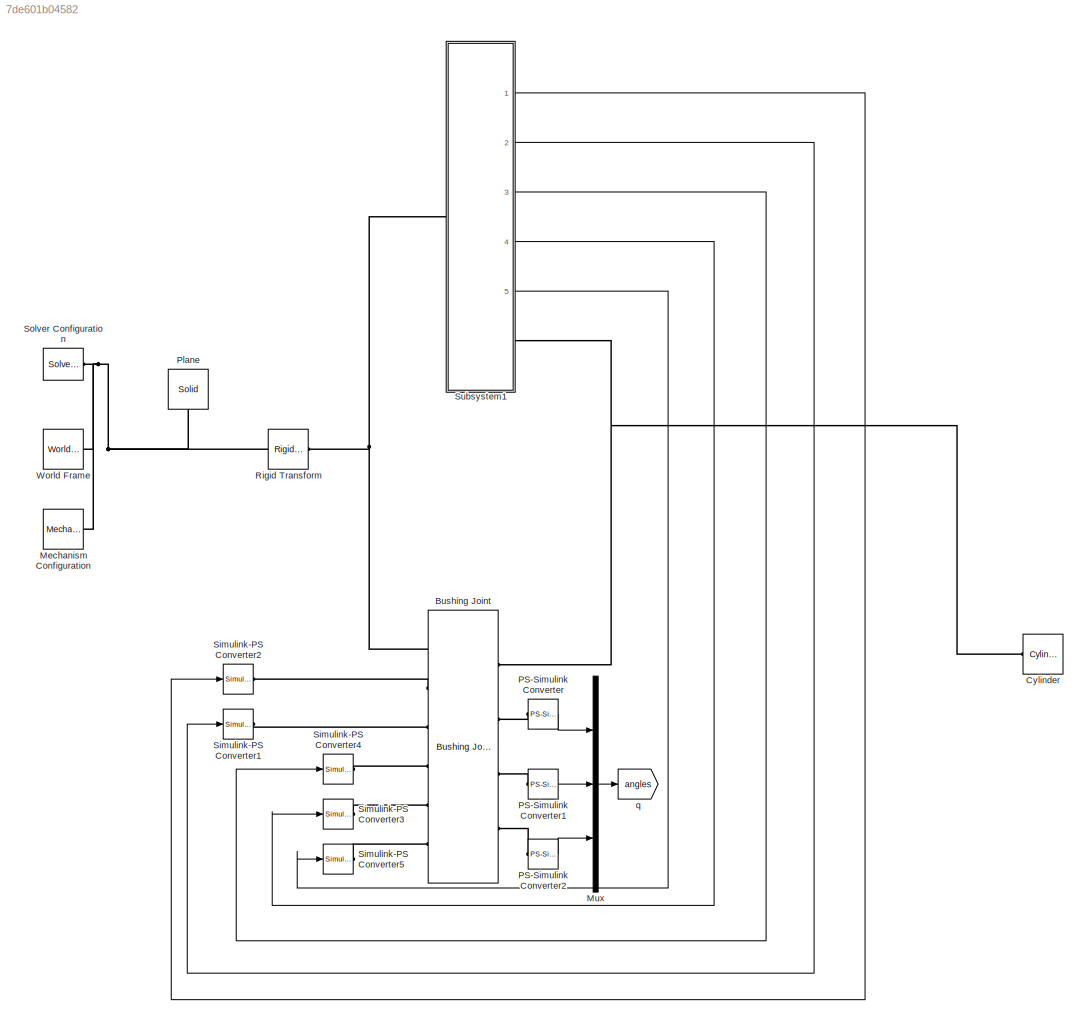
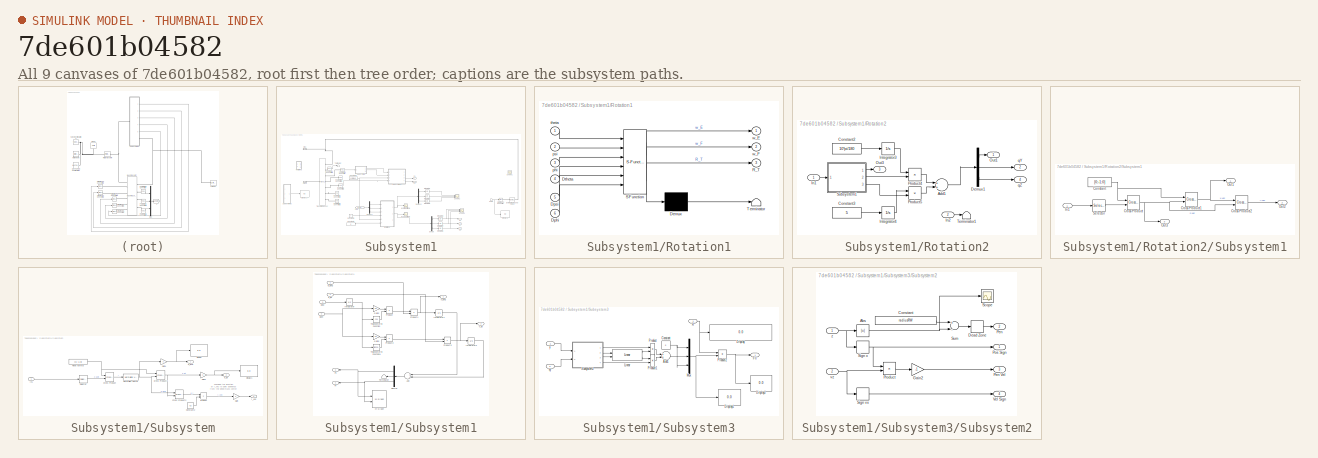
[diagram: thumbnail index - all 9 canvases of the model, root first then tree order]
MODEL slx_7de601b04582
KIND model
CONFIG AbsTol = auto
CONFIG EnableMultiTasking = on
CONFIG FixedStep = auto
CONFIG MaxStep = auto
CONFIG MinStep = auto
CONFIG RelTol = 1e-3
CONFIG SampleTimeConstraint = Unconstrained
CONFIG Solver = VariableStepAuto
CONFIG SolverName = VariableStepAuto
CONFIG StartTime = 0.0
CONFIG StopTime = 5
BLOCK [Reference] Bushing Joint  REF=sm_lib/Joints/Bushing Joint
  Ports = [0, 0, 0, 0, 0, 6, 4]
  SourceBlock = sm_lib/Joints/Bushing Joint
  SourceProductBaseCode = MS
  SourceProductName = Simscape Multibody
  SourceType = Bushing Joint
BLOCK [Reference] Cylinder  REF=Parts_Lib/Cylinder
  Ports = [0, 0, 0, 0, 0, 1]
  SourceBlock = Parts_Lib/Cylinder
  SourceType = Solid Cylinder with Markings
  Tag = CustomStyle
BLOCK [Reference] Mechanism Configuration  REF=sm_lib/Utilities/Mechanism
Configuration
  Ports = [0, 0, 0, 0, 0, 0, 1]
  SourceBlock = sm_lib/Utilities/Mechanism\nConfiguration
  SourceProductBaseCode = MS
  SourceProductName = Simscape Multibody
  SourceType = Mechanism\nConfiguration
BLOCK [Mux] Mux
  DisplayOption = bar
  Inputs = 3
  Ports = [3, 1]
BLOCK [Reference] PS-Simulink Converter  REF=nesl_utility/PS-Simulink
Converter
  Ports = [0, 1, 0, 0, 0, 1]
  SourceBlock = nesl_utility/PS-Simulink\nConverter
  SourceProductBaseCode = SS
  SourceProductName = Simscape
  SourceType = PS-Simulink\nConverter
BLOCK [Reference] PS-Simulink Converter1  REF=nesl_utility/PS-Simulink
Converter
  Ports = [0, 1, 0, 0, 0, 1]
  SourceBlock = nesl_utility/PS-Simulink\nConverter
  SourceProductBaseCode = SS
  SourceProductName = Simscape
  SourceType = PS-Simulink\nConverter
BLOCK [Reference] PS-Simulink Converter2  REF=nesl_utility/PS-Simulink
Converter
  Ports = [0, 1, 0, 0, 0, 1]
  SourceBlock = nesl_utility/PS-Simulink\nConverter
  SourceProductBaseCode = SS
  SourceProductName = Simscape
  SourceType = PS-Simulink\nConverter
BLOCK [Reference] Plane  REF=sm_lib/Body Elements/Solid
  Ports = [0, 0, 0, 0, 0, 0, 1]
  SourceBlock = sm_lib/Body Elements/Solid
  SourceProductBaseCode = MS
  SourceProductName = Simscape Multibody
  SourceType = Solid
BLOCK [Reference] Rigid Transform  REF=sm_lib/Frames and
Transforms/Rigid
Transform
  Ports = [0, 0, 0, 0, 0, 1, 1]
  SourceBlock = sm_lib/Frames and\nTransforms/Rigid\nTransform
  SourceProductBaseCode = MS
  SourceProductName = Simscape Multibody
  SourceType = Rigid\nTransform
BLOCK [Reference] Simulink-PS Converter1  REF=nesl_utility/Simulink-PS
Converter
  Ports = [1, 0, 0, 0, 0, 0, 1]
  SourceBlock = nesl_utility/Simulink-PS\nConverter
  SourceProductBaseCode = SS
  SourceProductName = Simscape
  SourceType = Simulink-PS\nConverter
BLOCK [Reference] Simulink-PS Converter2  REF=nesl_utility/Simulink-PS
Converter
  Ports = [1, 0, 0, 0, 0, 0, 1]
  SourceBlock = nesl_utility/Simulink-PS\nConverter
  SourceProductBaseCode = SS
  SourceProductName = Simscape
  SourceType = Simulink-PS\nConverter
BLOCK [Reference] Simulink-PS Converter3  REF=nesl_utility/Simulink-PS
Converter
  Ports = [1, 0, 0, 0, 0, 0, 1]
  SourceBlock = nesl_utility/Simulink-PS\nConverter
  SourceProductBaseCode = SS
  SourceProductName = Simscape
  SourceType = Simulink-PS\nConverter
BLOCK [Reference] Simulink-PS Converter4  REF=nesl_utility/Simulink-PS
Converter
  Ports = [1, 0, 0, 0, 0, 0, 1]
  SourceBlock = nesl_utility/Simulink-PS\nConverter
  SourceProductBaseCode = SS
  SourceProductName = Simscape
  SourceType = Simulink-PS\nConverter
BLOCK [Reference] Simulink-PS Converter5  REF=nesl_utility/Simulink-PS
Converter
  Ports = [1, 0, 0, 0, 0, 0, 1]
  SourceBlock = nesl_utility/Simulink-PS\nConverter
  SourceProductBaseCode = SS
  SourceProductName = Simscape
  SourceType = Simulink-PS\nConverter
BLOCK [Reference] Solver Configuration  REF=nesl_utility/Solver
Configuration
  Ports = [0, 0, 0, 0, 0, 0, 1]
  SourceBlock = nesl_utility/Solver\nConfiguration
  SourceProductBaseCode = SS
  SourceProductName = Simscape
  SourceType = Solver\nConfiguration
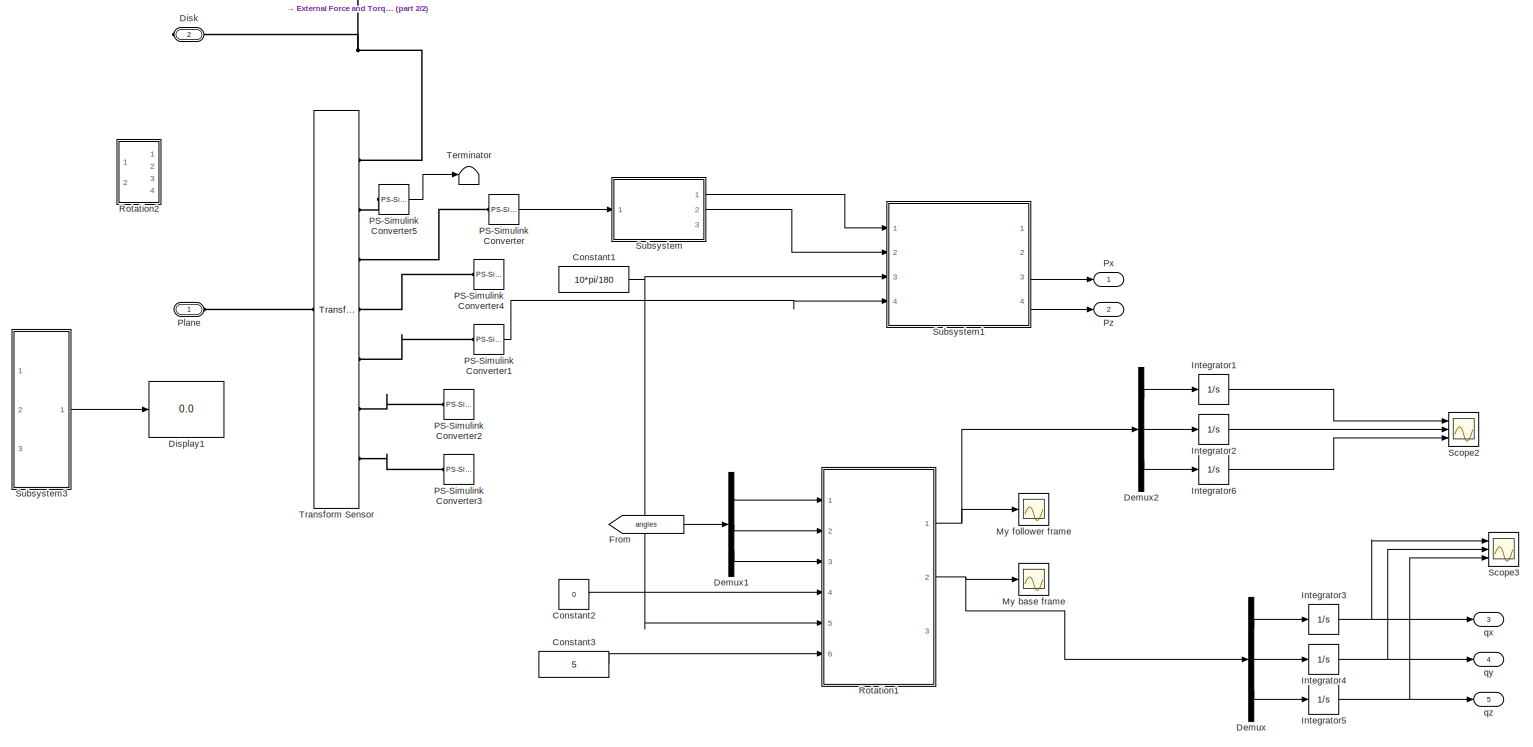
[diagram: Subsystem1 - part 1/2, most of the canvas]
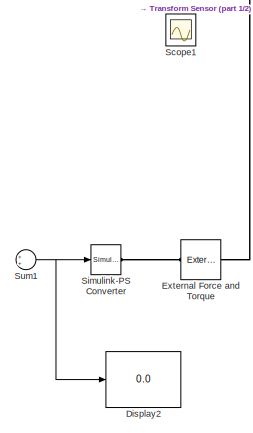
[diagram: Subsystem1 - part 2/2, middle right region]
BLOCK [SubSystem] Subsystem1
  Ports = [0, 5, 0, 0, 0, 1, 1]
  RequestExecContextInheritance = off
  Variant = off
BLOCK [Constant] Subsystem1/Constant1
  Value = 10*pi/180
BLOCK [Constant] Subsystem1/Constant2
  Value = 0
BLOCK [Constant] Subsystem1/Constant3
  Value = 5
BLOCK [Demux] Subsystem1/Demux
  DisplayOption = bar
  Outputs = 3
  Ports = [1, 3]
BLOCK [Demux] Subsystem1/Demux1
  DisplayOption = bar
  Outputs = 3
  Ports = [1, 3]
BLOCK [Demux] Subsystem1/Demux2
  DisplayOption = bar
  Outputs = 3
  Ports = [1, 3]
BLOCK [PMIOPort] Subsystem1/Disk
  Port = 2
  Side = Right
BLOCK [Display] Subsystem1/Display1
  Commented = on
  Decimation = 1
  Ports = [1]
BLOCK [Display] Subsystem1/Display2
  Decimation = 1
  Ports = [1]
BLOCK [Reference] Subsystem1/External Force and Torque  REF=sm_lib/Forces and
Torques/External Force
and Torque
  Commented = on
  Ports = [0, 0, 0, 0, 0, 1, 1]
  SourceBlock = sm_lib/Forces and\nTorques/External Force\nand Torque
  SourceProductBaseCode = MS
  SourceProductName = Simscape Multibody
  SourceType = External Force\nand Torque
BLOCK [From] Subsystem1/From
  GotoTag = angles
  TagVisibility = global
BLOCK [Integrator] Subsystem1/Integrator1
  Ports = [1, 1]
BLOCK [Integrator] Subsystem1/Integrator2
  Ports = [1, 1]
BLOCK [Integrator] Subsystem1/Integrator3
  Ports = [1, 1]
BLOCK [Integrator] Subsystem1/Integrator4
  Ports = [1, 1]
BLOCK [Integrator] Subsystem1/Integrator5
  Ports = [1, 1]
BLOCK [Integrator] Subsystem1/Integrator6
  Ports = [1, 1]
BLOCK [Scope] Subsystem1/My base frame
  NumInputPorts = 1
  Ports = [1]
  ScopeSpecificationString = Simulink.scopes.TimeScopeBlockCfg('CurrentConfiguration', extmgr.ConfigurationSet(extmgr.Configuration('Core','General UI',true),extmgr.Configuration('Core','Source UI',true),extmgr.Configuration('Sources','WiredSimulink',true,'DataLoggingVariableName','ScopeData1'),extmgr.Configuration('Visuals','Time Domain',true,'SerializedDisplays',{struct('MinYLimReal','-0.87343','MaxYLimReal','5.6526','YLabe...<+1436ch>
BLOCK [Scope] Subsystem1/My follower frame
  NumInputPorts = 1
  Ports = [1]
  ScopeSpecificationString = Simulink.scopes.TimeScopeBlockCfg('CurrentConfiguration', extmgr.ConfigurationSet(extmgr.Configuration('Core','General UI',true),extmgr.Configuration('Core','Source UI',true),extmgr.Configuration('Sources','WiredSimulink',true),extmgr.Configuration('Visuals','Time Domain',true,'SerializedDisplays',{struct('MinYLimReal','-0.82135','MaxYLimReal','5.64682','YLabelReal','','MinYLimMag','0.00000','MaxY...<+1400ch>
BLOCK [Reference] Subsystem1/PS-Simulink Converter  REF=nesl_utility/PS-Simulink
Converter
  Ports = [0, 1, 0, 0, 0, 1]
  SourceBlock = nesl_utility/PS-Simulink\nConverter
  SourceProductBaseCode = SS
  SourceProductName = Simscape
  SourceType = PS-Simulink\nConverter
BLOCK [Reference] Subsystem1/PS-Simulink Converter1  REF=nesl_utility/PS-Simulink
Converter
  Ports = [0, 1, 0, 0, 0, 1]
  SourceBlock = nesl_utility/PS-Simulink\nConverter
  SourceProductBaseCode = SS
  SourceProductName = Simscape
  SourceType = PS-Simulink\nConverter
BLOCK [Reference] Subsystem1/PS-Simulink Converter2  REF=nesl_utility/PS-Simulink
Converter
  Ports = [0, 1, 0, 0, 0, 1]
  SourceBlock = nesl_utility/PS-Simulink\nConverter
  SourceProductBaseCode = SS
  SourceProductName = Simscape
  SourceType = PS-Simulink\nConverter
BLOCK [Reference] Subsystem1/PS-Simulink Converter3  REF=nesl_utility/PS-Simulink
Converter
  Ports = [0, 1, 0, 0, 0, 1]
  SourceBlock = nesl_utility/PS-Simulink\nConverter
  SourceProductBaseCode = SS
  SourceProductName = Simscape
  SourceType = PS-Simulink\nConverter
BLOCK [Reference] Subsystem1/PS-Simulink Converter4  REF=nesl_utility/PS-Simulink
Converter
  Ports = [0, 1, 0, 0, 0, 1]
  SourceBlock = nesl_utility/PS-Simulink\nConverter
  SourceProductBaseCode = SS
  SourceProductName = Simscape
  SourceType = PS-Simulink\nConverter
BLOCK [Reference] Subsystem1/PS-Simulink Converter5  REF=nesl_utility/PS-Simulink
Converter
  Ports = [0, 1, 0, 0, 0, 1]
  SourceBlock = nesl_utility/PS-Simulink\nConverter
  SourceProductBaseCode = SS
  SourceProductName = Simscape
  SourceType = PS-Simulink\nConverter
BLOCK [PMIOPort] Subsystem1/Plane
  Port = 1
  Side = Left
BLOCK [Outport] Subsystem1/Px
  IconDisplay = Port number
BLOCK [Outport] Subsystem1/Pz
  IconDisplay = Port number
  Port = 2
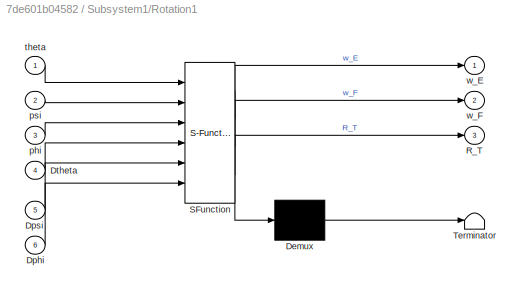
BLOCK [SubSystem] Subsystem1/Rotation1
  ErrorFcn = Stateflow.Translate.translate
  PermitHierarchicalResolution = ExplicitOnly
  Ports = [6, 3]
  RequestExecContextInheritance = off
  SFBlockType = MATLAB Function
  TreatAsAtomicUnit = on
  Variant = off
BLOCK [Demux] Subsystem1/Rotation1/ Demux 
  Outputs = 1
  Ports = [1, 1]
BLOCK [S-Function] Subsystem1/Rotation1/ SFunction 
  EnableBusSupport = on
  FunctionName = sf_sfun
  PortCounts = [6 4]
  Ports = [6, 4]
  SFcnIsStateOwnerBlock = off
  SFunctionDeploymentMode = off
  Tag = Stateflow S-Function KinematicWheelWith6DOF 2
BLOCK [Terminator] Subsystem1/Rotation1/ Terminator 
BLOCK [Inport] Subsystem1/Rotation1/Dphi
  IconDisplay = Port number
  Port = 6
BLOCK [Inport] Subsystem1/Rotation1/Dpsi
  IconDisplay = Port number
  Port = 5
BLOCK [Inport] Subsystem1/Rotation1/Dtheta
  IconDisplay = Port number
  Port = 4
BLOCK [Outport] Subsystem1/Rotation1/R_T
  IconDisplay = Port number
  Port = 3
BLOCK [Inport] Subsystem1/Rotation1/phi
  IconDisplay = Port number
  Port = 3
BLOCK [Inport] Subsystem1/Rotation1/psi
  IconDisplay = Port number
  Port = 2
BLOCK [Inport] Subsystem1/Rotation1/theta
  IconDisplay = Port number
BLOCK [Outport] Subsystem1/Rotation1/w_E
  IconDisplay = Port number
BLOCK [Outport] Subsystem1/Rotation1/w_F
  IconDisplay = Port number
  Port = 2
BLOCK [SubSystem] Subsystem1/Rotation2
  Commented = on
  Ports = [2, 4]
  RequestExecContextInheritance = off
  Variant = off
BLOCK [Sum] Subsystem1/Rotation2/Add1
  InputSameDT = off
  OutDataTypeStr = Inherit: Inherit via internal rule
  Ports = [2, 1]
  SaturateOnIntegerOverflow = off
BLOCK [Constant] Subsystem1/Rotation2/Constant2
  Value = 10*pi/180
BLOCK [Constant] Subsystem1/Rotation2/Constant3
  Value = 5
BLOCK [Demux] Subsystem1/Rotation2/Demux1
  DisplayOption = bar
  Outputs = 3
  Ports = [1, 3]
BLOCK [Inport] Subsystem1/Rotation2/In1
  IconDisplay = Port number
BLOCK [Inport] Subsystem1/Rotation2/In2
  IconDisplay = Port number
  Port = 2
BLOCK [Integrator] Subsystem1/Rotation2/Integrator3
  Ports = [1, 1]
BLOCK [Integrator] Subsystem1/Rotation2/Integrator4
  Ports = [1, 1]
BLOCK [Outport] Subsystem1/Rotation2/Out1
  IconDisplay = Port number
BLOCK [Outport] Subsystem1/Rotation2/Out3
  IconDisplay = Port number
  Port = 3
BLOCK [Product] Subsystem1/Rotation2/Product4
  InputSameDT = off
  OutDataTypeStr = Inherit: Inherit via internal rule
  Ports = [2, 1]
  RndMeth = Floor
  SaturateOnIntegerOverflow = off
BLOCK [Product] Subsystem1/Rotation2/Product5
  InputSameDT = off
  OutDataTypeStr = Inherit: Inherit via internal rule
  Ports = [2, 1]
  RndMeth = Floor
  SaturateOnIntegerOverflow = off
BLOCK [SubSystem] Subsystem1/Rotation2/Subsystem1
  Ports = [1, 3]
  RequestExecContextInheritance = off
  Variant = off
BLOCK [Constant] Subsystem1/Rotation2/Subsystem1/Constant
  Value = [0;-1;0]
BLOCK [Reference] Subsystem1/Rotation2/Subsystem1/Cross Product  REF=Contact_Forces_Lib/Math/Cross
Product
  Ports = [2, 1]
  SourceBlock = Contact_Forces_Lib/Math/Cross\nProduct
  SourceType = SubSystem
BLOCK [Reference] Subsystem1/Rotation2/Subsystem1/Cross Product1  REF=Contact_Forces_Lib/Math/Cross
Product
  Ports = [2, 1]
  SourceBlock = Contact_Forces_Lib/Math/Cross\nProduct
  SourceType = SubSystem
BLOCK [Reference] Subsystem1/Rotation2/Subsystem1/Cross Product2  REF=Contact_Forces_Lib/Math/Cross
Product
  Ports = [2, 1]
  SourceBlock = Contact_Forces_Lib/Math/Cross\nProduct
  SourceType = SubSystem
BLOCK [Inport] Subsystem1/Rotation2/Subsystem1/In1
  IconDisplay = Port number
BLOCK [Outport] Subsystem1/Rotation2/Subsystem1/Out1
  IconDisplay = Port number
BLOCK [Outport] Subsystem1/Rotation2/Subsystem1/Out2
  IconDisplay = Port number
  Port = 2
BLOCK [Outport] Subsystem1/Rotation2/Subsystem1/Out3
  IconDisplay = Port number
  Port = 3
BLOCK [Selector] Subsystem1/Rotation2/Subsystem1/Selector
  IndexOptions = Index vector (dialog),Index vector (dialog)
  Indices = [1:3],2
  InputPortWidth = 3
  NumberOfDimensions = 2
  OutputSizes = 1,1
  Ports = [1, 1]
BLOCK [Terminator] Subsystem1/Rotation2/Terminator1
BLOCK [Outport] Subsystem1/Rotation2/qY
  IconDisplay = Port number
  Port = 2
BLOCK [Outport] Subsystem1/Rotation2/qZ
  IconDisplay = Port number
  Port = 4
BLOCK [Scope] Subsystem1/Scope1
  NumInputPorts = 1
  Ports = [1]
  ScopeSpecificationString = Simulink.scopes.TimeScopeBlockCfg('CurrentConfiguration', extmgr.ConfigurationSet(extmgr.Configuration('Core','General UI',true),extmgr.Configuration('Core','Source UI',true),extmgr.Configuration('Sources','WiredSimulink',true,'DataLoggingVariableName','ScopeData3'),extmgr.Configuration('Visuals','Time Domain',true,'SerializedDisplays',{struct('MinYLimReal','-1.00000','MaxYLimReal','1.00000','YLab...<+1368ch>
BLOCK [Scope] Subsystem1/Scope2
  NumInputPorts = 3
  Ports = [3]
  ScopeSpecificationString = Simulink.scopes.TimeScopeBlockCfg('CurrentConfiguration', extmgr.ConfigurationSet(extmgr.Configuration('Core','General UI',true),extmgr.Configuration('Core','Source UI',true),extmgr.Configuration('Sources','WiredSimulink',true,'DataLoggingVariableName','ScopeData3'),extmgr.Configuration('Visuals','Time Domain',true,'SerializedDisplays',{struct('MinYLimReal','-3.16389','MaxYLimReal','28.12932','YLa...<+1458ch>
BLOCK [Scope] Subsystem1/Scope3
  NumInputPorts = 3
  Ports = [3]
  ScopeSpecificationString = Simulink.scopes.TimeScopeBlockCfg('CurrentConfiguration', extmgr.ConfigurationSet(extmgr.Configuration('Core','General UI',true),extmgr.Configuration('Core','Source UI',true),extmgr.Configuration('Sources','WiredSimulink',true,'DataLoggingVariableName','ScopeData1'),extmgr.Configuration('Visuals','Time Domain',true,'SerializedDisplays',{struct('MinYLimReal','-3.17414','MaxYLimReal','28.12543','YLa...<+1458ch>
BLOCK [Reference] Subsystem1/Simulink-PS Converter  REF=nesl_utility/Simulink-PS
Converter
  Commented = on
  Ports = [1, 0, 0, 0, 0, 0, 1]
  SourceBlock = nesl_utility/Simulink-PS\nConverter
  SourceProductBaseCode = SS
  SourceProductName = Simscape
  SourceType = Simulink-PS\nConverter
BLOCK [SubSystem] Subsystem1/Subsystem
  Ports = [1, 3]
  RequestExecContextInheritance = off
  Variant = off
BLOCK [Constant] Subsystem1/Subsystem/Constant2
  Value = 0.3
BLOCK [Reference] Subsystem1/Subsystem/Cross Product  REF=Contact_Forces_Lib/Math/Cross
Product
  Ports = [2, 1]
  SourceBlock = Contact_Forces_Lib/Math/Cross\nProduct
  SourceType = SubSystem
BLOCK [Reference] Subsystem1/Subsystem/Cross Product1  REF=Contact_Forces_Lib/Math/Cross
Product
  Ports = [2, 1]
  SourceBlock = Contact_Forces_Lib/Math/Cross\nProduct
  SourceType = SubSystem
BLOCK [Reference] Subsystem1/Subsystem/Cross Product2  REF=Contact_Forces_Lib/Math/Cross
Product
  Ports = [2, 1]
  SourceBlock = Contact_Forces_Lib/Math/Cross\nProduct
  SourceType = SubSystem
BLOCK [Display] Subsystem1/Subsystem/Display
  Decimation = 1
  Ports = [1]
BLOCK [Display] Subsystem1/Subsystem/Display1
  Decimation = 1
  Ports = [1]
BLOCK [Gain] Subsystem1/Subsystem/Gain
  Gain = -1
  OutDataTypeStr = Inherit: Inherit via internal rule
  ParamDataTypeStr = Inherit: Inherit via internal rule
  SaturateOnIntegerOverflow = off
BLOCK [Gain] Subsystem1/Subsystem/Gain1
  Gain = -1
  OutDataTypeStr = Inherit: Inherit via internal rule
  ParamDataTypeStr = Inherit: Inherit via internal rule
  SaturateOnIntegerOverflow = off
BLOCK [Gain] Subsystem1/Subsystem/Gain2
  Gain = -1
  OutDataTypeStr = Inherit: Inherit via internal rule
  ParamDataTypeStr = Inherit: Inherit via internal rule
  SaturateOnIntegerOverflow = off
BLOCK [Inport] Subsystem1/Subsystem/In1
  IconDisplay = Port number
BLOCK [Reference] Subsystem1/Subsystem/Normalize Vector  REF=vrlib/Utilities/Normalize Vector
  Ports = [1, 1]
  SourceBlock = vrlib/Utilities/Normalize Vector
  SourceProductBaseCode = VR
  SourceProductName = Simulink 3D Animation
  SourceType = Normalize Vector
BLOCK [Constant] Subsystem1/Subsystem/Plane normal
  Value = [0;-1;0]
BLOCK [Product] Subsystem1/Subsystem/Product
  InputSameDT = off
  OutDataTypeStr = Inherit: Inherit via internal rule
  Ports = [2, 1]
  RndMeth = Floor
  SaturateOnIntegerOverflow = off
BLOCK [Selector] Subsystem1/Subsystem/Selector
  IndexOptions = Index vector (dialog),Index vector (dialog)
  Indices = [1:3],3
  InputPortWidth = 3
  NumberOfDimensions = 2
  OutputSizes = 1,1
  Ports = [1, 1]
BLOCK [Outport] Subsystem1/Subsystem/e_lat
  IconDisplay = Port number
  Port = 2
BLOCK [Outport] Subsystem1/Subsystem/e_long
  IconDisplay = Port number
BLOCK [Outport] Subsystem1/Subsystem/r_vec
  IconDisplay = Port number
  Port = 3
BLOCK [SubSystem] Subsystem1/Subsystem1
  Ports = [4, 4]
  RequestExecContextInheritance = off
  Variant = off
BLOCK [Sum] Subsystem1/Subsystem1/Add
  InputSameDT = off
  Inputs = 2
  OutDataTypeStr = Inherit: Inherit via internal rule
  Ports = [2, 1]
  SaturateOnIntegerOverflow = off
BLOCK [Demux] Subsystem1/Subsystem1/Demux
  DisplayOption = bar
  Outputs = 3
  Ports = [1, 3]
BLOCK [Inport] Subsystem1/Subsystem1/Dphi
  IconDisplay = Port number
  Port = 4
BLOCK [Inport] Subsystem1/Subsystem1/Dpsi
  IconDisplay = Port number
  Port = 3
BLOCK [Gain] Subsystem1/Subsystem1/Gain2
  Gain = 0.3
  OutDataTypeStr = Inherit: Inherit via internal rule
  ParamDataTypeStr = Inherit: Inherit via internal rule
  SaturateOnIntegerOverflow = off
BLOCK [Gain] Subsystem1/Subsystem1/Gain3
  Gain = 0.3
  OutDataTypeStr = Inherit: Inherit via internal rule
  ParamDataTypeStr = Inherit: Inherit via internal rule
  SaturateOnIntegerOverflow = off
BLOCK [Integrator] Subsystem1/Subsystem1/Integrator
  Ports = [1, 1]
BLOCK [Integrator] Subsystem1/Subsystem1/Integrator1
  Ports = [1, 1]
BLOCK [Integrator] Subsystem1/Subsystem1/Integrator2
  Ports = [1, 1]
BLOCK [Product] Subsystem1/Subsystem1/Product
  InputSameDT = off
  OutDataTypeStr = Inherit: Inherit via internal rule
  Ports = [2, 1]
  RndMeth = Floor
  SaturateOnIntegerOverflow = off
BLOCK [Product] Subsystem1/Subsystem1/Product1
  InputSameDT = off
  OutDataTypeStr = Inherit: Inherit via internal rule
  Ports = [2, 1]
  RndMeth = Floor
  SaturateOnIntegerOverflow = off
BLOCK [Product] Subsystem1/Subsystem1/Product2
  InputSameDT = off
  OutDataTypeStr = Inherit: Inherit via internal rule
  Ports = [2, 1]
  RndMeth = Floor
  SaturateOnIntegerOverflow = off
BLOCK [Product] Subsystem1/Subsystem1/Product3
  InputSameDT = off
  OutDataTypeStr = Inherit: Inherit via internal rule
  Ports = [2, 1]
  RndMeth = Floor
  SaturateOnIntegerOverflow = off
BLOCK [Outport] Subsystem1/Subsystem1/Px
  IconDisplay = Port number
  Port = 3
BLOCK [Outport] Subsystem1/Subsystem1/Py
  IconDisplay = Port number
  Port = 4
BLOCK [Terminator] Subsystem1/Subsystem1/Terminator
BLOCK [Trigonometry] Subsystem1/Subsystem1/Trigonometric Function
  Operator = cos
  Ports = [1, 1]
BLOCK [Trigonometry] Subsystem1/Subsystem1/Trigonometric Function1
  Ports = [1, 1]
BLOCK [Reference] Subsystem1/Subsystem1/XY Graph  REF=simulink/Sinks/XY Graph
  Ports = [2]
  SourceBlock = simulink/Sinks/XY Graph
  SourceProductBaseCode = SL
  SourceProductName = Simulink
  SourceType = XY scope.
BLOCK [Inport] Subsystem1/Subsystem1/e_lat
  IconDisplay = Port number
  Port = 2
BLOCK [Inport] Subsystem1/Subsystem1/e_long
  IconDisplay = Port number
BLOCK [Outport] Subsystem1/Subsystem1/v_lat
  IconDisplay = Port number
  Port = 2
BLOCK [Outport] Subsystem1/Subsystem1/v_long
  IconDisplay = Port number
BLOCK [SubSystem] Subsystem1/Subsystem3
  Commented = on
  Ports = [3, 1]
  RequestExecContextInheritance = off
  Variant = off
BLOCK [Sum] Subsystem1/Subsystem3/Add1
  InputSameDT = off
  OutDataTypeStr = Inherit: Inherit via internal rule
  Ports = [2, 1]
  SaturateOnIntegerOverflow = off
BLOCK [Constant] Subsystem1/Subsystem3/Constant
  Value = 0
BLOCK [Display] Subsystem1/Subsystem3/Display
  Decimation = 1
  Ports = [1]
BLOCK [Display] Subsystem1/Subsystem3/Display1
  Decimation = 1
  Ports = [1]
BLOCK [Display] Subsystem1/Subsystem3/Display2
  Decimation = 1
  Ports = [1]
BLOCK [Outport] Subsystem1/Subsystem3/Fn
  IconDisplay = Port number
BLOCK [Reference] Subsystem1/Subsystem3/Linear  REF=Contact_Forces_Lib/Force Law/Linear
  Ports = [2, 2]
  SourceBlock = Contact_Forces_Lib/Force Law/Linear
  SourceType = Linear Force Law
BLOCK [Mux] Subsystem1/Subsystem3/Mux
  DisplayOption = bar
  Inputs = 3
  Ports = [3, 1]
BLOCK [Product] Subsystem1/Subsystem3/Product
  InputSameDT = off
  OutDataTypeStr = Inherit: Inherit via internal rule
  Ports = [2, 1]
  RndMeth = Floor
  SaturateOnIntegerOverflow = off
BLOCK [Product] Subsystem1/Subsystem3/Product1
  InputSameDT = off
  OutDataTypeStr = Inherit: Inherit via internal rule
  Ports = [2, 1]
  RndMeth = Floor
  SaturateOnIntegerOverflow = off
BLOCK [Product] Subsystem1/Subsystem3/Product2
  InputSameDT = off
  Inputs = /*
  Multiplication = Matrix(*)
  OutDataTypeStr = Inherit: Inherit via internal rule
  Ports = [2, 1]
  RndMeth = Floor
  SaturateOnIntegerOverflow = off
BLOCK [Inport] Subsystem1/Subsystem3/R
  IconDisplay = Port number
BLOCK [SubSystem] Subsystem1/Subsystem3/Subsystem2
  Ports = [2, 4]
  RequestExecContextInheritance = off
  Variant = off
BLOCK [Abs] Subsystem1/Subsystem3/Subsystem2/Abs
  SaturateOnIntegerOverflow = off
  ZeroCross = off
BLOCK [Constant] Subsystem1/Subsystem3/Subsystem2/Constant
  Value = radiusRW
BLOCK [DeadZone] Subsystem1/Subsystem3/Subsystem2/Dead Zone
  LowerValue = -inf
  UpperValue = 0
BLOCK [Gain] Subsystem1/Subsystem3/Subsystem2/Gain2
  Gain = -1
  OutDataTypeStr = Inherit: Inherit via internal rule
  ParamDataTypeStr = Inherit: Inherit via internal rule
  SaturateOnIntegerOverflow = off
BLOCK [Outport] Subsystem1/Subsystem3/Subsystem2/Pen
  IconDisplay = Port number
  Port = 2
BLOCK [Outport] Subsystem1/Subsystem3/Subsystem2/Pen Vel
  IconDisplay = Port number
  Port = 3
BLOCK [Outport] Subsystem1/Subsystem3/Subsystem2/Pos Sign
  IconDisplay = Port number
BLOCK [Product] Subsystem1/Subsystem3/Subsystem2/Product
  InputSameDT = off
  OutDataTypeStr = Inherit: Inherit via internal rule
  Ports = [2, 1]
  RndMeth = Floor
  SaturateOnIntegerOverflow = off
BLOCK [Scope] Subsystem1/Subsystem3/Subsystem2/Scope
  NumInputPorts = 1
  Ports = [1]
  ScopeSpecificationString = Simulink.scopes.TimeScopeBlockCfg('CurrentConfiguration', extmgr.ConfigurationSet(extmgr.Configuration('Core','General UI',true),extmgr.Configuration('Core','Source UI',true),extmgr.Configuration('Sources','WiredSimulink',true,'DataLoggingVariableName','ScopeData2'),extmgr.Configuration('Visuals','Time Domain',true,'SerializedDisplays',{struct('MinYLimReal','0.2999999999999997','MaxYLimReal','0.30...<+1478ch>
BLOCK [Signum] Subsystem1/Subsystem3/Subsystem2/Sign vx
  ZeroCross = off
BLOCK [Signum] Subsystem1/Subsystem3/Subsystem2/Sign x
  ZeroCross = off
BLOCK [Sum] Subsystem1/Subsystem3/Subsystem2/Sum
  InputSameDT = off
  Inputs = +-
  OutDataTypeStr = Inherit: Inherit via internal rule
  Ports = [2, 1]
  SaturateOnIntegerOverflow = off
BLOCK [Outport] Subsystem1/Subsystem3/Subsystem2/Vel Sign
  IconDisplay = Port number
  Port = 4
BLOCK [Inport] Subsystem1/Subsystem3/Subsystem2/vz
  IconDisplay = Port number
  Port = 2
BLOCK [Inport] Subsystem1/Subsystem3/Subsystem2/z
  IconDisplay = Port number
BLOCK [Inport] Subsystem1/Subsystem3/vy
  IconDisplay = Port number
  Port = 3
BLOCK [Inport] Subsystem1/Subsystem3/y
  IconDisplay = Port number
  Port = 2
BLOCK [Sum] Subsystem1/Sum1
  Commented = on
  IconShape = round
  InputSameDT = off
  Inputs = ++|
  OutDataTypeStr = Inherit: Inherit via internal rule
  Ports = [2, 1]
  SaturateOnIntegerOverflow = off
BLOCK [Terminator] Subsystem1/Terminator
BLOCK [Reference] Subsystem1/Transform Sensor  REF=sm_lib/Frames and
Transforms/Transform
Sensor
  Ports = [0, 0, 0, 0, 0, 1, 7]
  SourceBlock = sm_lib/Frames and\nTransforms/Transform\nSensor
  SourceProductBaseCode = MS
  SourceProductName = Simscape Multibody
  SourceType = Transform\nSensor
BLOCK [Outport] Subsystem1/qx
  IconDisplay = Port number
  Port = 3
BLOCK [Outport] Subsystem1/qy
  IconDisplay = Port number
  Port = 4
BLOCK [Outport] Subsystem1/qz
  IconDisplay = Port number
  Port = 5
BLOCK [Reference] World Frame  REF=sm_lib/Frames and
Transforms/World Frame
  Ports = [0, 0, 0, 0, 0, 0, 1]
  SourceBlock = sm_lib/Frames and\nTransforms/World Frame
  SourceProductBaseCode = MS
  SourceProductName = Simscape Multibody
  SourceType = World Frame
BLOCK [Goto] q
  GotoTag = angles
  TagVisibility = global
ANNOTATION Subsystem1/Subsystem: Changing the direction of r_vec to point downwrds from the wheel mass center
LINE Mux:1 -> q:1
LINE PS-Simulink Converter1:1 -> Mux:2
LINE PS-Simulink Converter2:1 -> Mux:3
LINE PS-Simulink Converter:1 -> Mux:1
NET Subsystem1/Constant1:1 -> Subsystem1/Rotation1:5, Subsystem1/Subsystem1:3
LINE Subsystem1/Constant2:1 -> Subsystem1/Rotation1:4
LINE Subsystem1/Constant3:1 -> Subsystem1/Rotation1:6
LINE Subsystem1/Demux1:1 -> Subsystem1/Rotation1:1
LINE Subsystem1/Demux1:2 -> Subsystem1/Rotation1:2
LINE Subsystem1/Demux1:3 -> Subsystem1/Rotation1:3
LINE Subsystem1/Demux2:1 -> Subsystem1/Integrator1:1
LINE Subsystem1/Demux2:2 -> Subsystem1/Integrator2:1
LINE Subsystem1/Demux2:3 -> Subsystem1/Integrator6:1
LINE Subsystem1/Demux:1 -> Subsystem1/Integrator3:1
LINE Subsystem1/Demux:2 -> Subsystem1/Integrator4:1
LINE Subsystem1/Demux:3 -> Subsystem1/Integrator5:1
LINE Subsystem1/From:1 -> Subsystem1/Demux1:1
LINE Subsystem1/Integrator1:1 -> Subsystem1/Scope2:1
LINE Subsystem1/Integrator2:1 -> Subsystem1/Scope2:2
NET Subsystem1/Integrator3:1 -> Subsystem1/Scope3:1, Subsystem1/qx:1
NET Subsystem1/Integrator4:1 -> Subsystem1/Scope3:2, Subsystem1/qy:1
NET Subsystem1/Integrator5:1 -> Subsystem1/Scope3:3, Subsystem1/qz:1
LINE Subsystem1/Integrator6:1 -> Subsystem1/Scope2:3
LINE Subsystem1/PS-Simulink Converter1:1 -> Subsystem1/Subsystem1:4
LINE Subsystem1/PS-Simulink Converter5:1 -> Subsystem1/Terminator:1
LINE Subsystem1/PS-Simulink Converter:1 -> Subsystem1/Subsystem:1
NET Subsystem1/Rotation1:1 -> Subsystem1/Demux2:1, Subsystem1/My follower frame:1
NET Subsystem1/Rotation1:2 -> Subsystem1/Demux:1, Subsystem1/My base frame:1
LINE Subsystem1/Rotation2/Add1:1 -> Subsystem1/Rotation2/Demux1:1
LINE Subsystem1/Rotation2/Constant2:1 -> Subsystem1/Rotation2/Integrator3:1
LINE Subsystem1/Rotation2/Constant3:1 -> Subsystem1/Rotation2/Integrator4:1
LINE Subsystem1/Rotation2/Demux1:1 -> Subsystem1/Rotation2/Out1:1
LINE Subsystem1/Rotation2/Demux1:2 -> Subsystem1/Rotation2/qY:1
LINE Subsystem1/Rotation2/Demux1:3 -> Subsystem1/Rotation2/qZ:1
LINE Subsystem1/Rotation2/In1:1 -> Subsystem1/Rotation2/Subsystem1:1
LINE Subsystem1/Rotation2/In2:1 -> Subsystem1/Rotation2/Terminator1:1
LINE Subsystem1/Rotation2/Integrator3:1 -> Subsystem1/Rotation2/Product4:1
LINE Subsystem1/Rotation2/Integrator4:1 -> Subsystem1/Rotation2/Product5:1
LINE Subsystem1/Rotation2/Product4:1 -> Subsystem1/Rotation2/Add1:1
LINE Subsystem1/Rotation2/Product5:1 -> Subsystem1/Rotation2/Add1:2
NET Subsystem1/Rotation2/Subsystem1/Constant:1 -> Subsystem1/Rotation2/Subsystem1/Cross Product1:1, Subsystem1/Rotation2/Subsystem1/Cross Product:1
NET Subsystem1/Rotation2/Subsystem1/Cross Product1:1 -> Subsystem1/Rotation2/Subsystem1/Cross Product2:1, Subsystem1/Rotation2/Subsystem1/Out1:1
LINE Subsystem1/Rotation2/Subsystem1/Cross Product2:1 -> Subsystem1/Rotation2/Subsystem1/Out2:1
NET Subsystem1/Rotation2/Subsystem1/Cross Product:1 -> Subsystem1/Rotation2/Subsystem1/Cross Product1:2, Subsystem1/Rotation2/Subsystem1/Cross Product2:2, Subsystem1/Rotation2/Subsystem1/Out3:1
LINE Subsystem1/Rotation2/Subsystem1/In1:1 -> Subsystem1/Rotation2/Subsystem1/Selector:1
LINE Subsystem1/Rotation2/Subsystem1/Selector:1 -> Subsystem1/Rotation2/Subsystem1/Cross Product:2
LINE Subsystem1/Rotation2/Subsystem1:1 -> Subsystem1/Rotation2/Out3:1
LINE Subsystem1/Rotation2/Subsystem1:2 -> Subsystem1/Rotation2/Product4:2
LINE Subsystem1/Rotation2/Subsystem1:3 -> Subsystem1/Rotation2/Product5:2
LINE Subsystem1/Subsystem/Constant2:1 -> Subsystem1/Subsystem/Product:2
NET Subsystem1/Subsystem/Cross Product1:1 -> Subsystem1/Subsystem/Cross Product2:2, Subsystem1/Subsystem/Gain2:1
LINE Subsystem1/Subsystem/Cross Product2:1 -> Subsystem1/Subsystem/Product:1
LINE Subsystem1/Subsystem/Cross Product:1 -> Subsystem1/Subsystem/Normalize Vector:1
NET Subsystem1/Subsystem/Gain1:1 -> Subsystem1/Subsystem/Display:1, Subsystem1/Subsystem/e_long:1
NET Subsystem1/Subsystem/Gain2:1 -> Subsystem1/Subsystem/Display1:1, Subsystem1/Subsystem/e_lat:1
LINE Subsystem1/Subsystem/Gain:1 -> Subsystem1/Subsystem/r_vec:1
LINE Subsystem1/Subsystem/In1:1 -> Subsystem1/Subsystem/Selector:1
NET Subsystem1/Subsystem/Normalize Vector:1 -> Subsystem1/Subsystem/Cross Product1:2, Subsystem1/Subsystem/Cross Product2:1, Subsystem1/Subsystem/Gain1:1
NET Subsystem1/Subsystem/Plane normal:1 -> Subsystem1/Subsystem/Cross Product1:1, Subsystem1/Subsystem/Cross Product:1
LINE Subsystem1/Subsystem/Product:1 -> Subsystem1/Subsystem/Gain:1
LINE Subsystem1/Subsystem/Selector:1 -> Subsystem1/Subsystem/Cross Product:2
LINE Subsystem1/Subsystem1/Add:1 -> Subsystem1/Subsystem1/Demux:1
NET Subsystem1/Subsystem1/Demux:1 -> Subsystem1/Subsystem1/Px:1, Subsystem1/Subsystem1/XY Graph:1
LINE Subsystem1/Subsystem1/Demux:2 -> Subsystem1/Subsystem1/Terminator:1
NET Subsystem1/Subsystem1/Demux:3 -> Subsystem1/Subsystem1/Py:1, Subsystem1/Subsystem1/XY Graph:2
NET Subsystem1/Subsystem1/Dphi:1 -> Subsystem1/Subsystem1/Gain2:1, Subsystem1/Subsystem1/Gain3:1
LINE Subsystem1/Subsystem1/Dpsi:1 -> Subsystem1/Subsystem1/Integrator:1
LINE Subsystem1/Subsystem1/Gain2:1 -> Subsystem1/Subsystem1/Product:1
LINE Subsystem1/Subsystem1/Gain3:1 -> Subsystem1/Subsystem1/Product2:1
LINE Subsystem1/Subsystem1/Integrator1:1 -> Subsystem1/Subsystem1/Add:1
LINE Subsystem1/Subsystem1/Integrator2:1 -> Subsystem1/Subsystem1/Add:2
NET Subsystem1/Subsystem1/Integrator:1 -> Subsystem1/Subsystem1/Trigonometric Function1:1, Subsystem1/Subsystem1/Trigonometric Function:1
NET Subsystem1/Subsystem1/Product1:1 -> Subsystem1/Subsystem1/Integrator1:1, Subsystem1/Subsystem1/v_long:1
LINE Subsystem1/Subsystem1/Product2:1 -> Subsystem1/Subsystem1/Product3:1
NET Subsystem1/Subsystem1/Product3:1 -> Subsystem1/Subsystem1/Integrator2:1, Subsystem1/Subsystem1/v_lat:1
LINE Subsystem1/Subsystem1/Product:1 -> Subsystem1/Subsystem1/Product1:1
LINE Subsystem1/Subsystem1/Trigonometric Function1:1 -> Subsystem1/Subsystem1/Product2:2
LINE Subsystem1/Subsystem1/Trigonometric Function:1 -> Subsystem1/Subsystem1/Product:2
LINE Subsystem1/Subsystem1/e_lat:1 -> Subsystem1/Subsystem1/Product3:2
LINE Subsystem1/Subsystem1/e_long:1 -> Subsystem1/Subsystem1/Product1:2
LINE Subsystem1/Subsystem1:3 -> Subsystem1/Px:1
LINE Subsystem1/Subsystem1:4 -> Subsystem1/Pz:1
LINE Subsystem1/Subsystem3/Add1:1 -> Subsystem1/Subsystem3/Mux:2
NET Subsystem1/Subsystem3/Constant:1 -> Subsystem1/Subsystem3/Mux:1, Subsystem1/Subsystem3/Mux:3
LINE Subsystem1/Subsystem3/Linear:1 -> Subsystem1/Subsystem3/Product:2
LINE Subsystem1/Subsystem3/Linear:2 -> Subsystem1/Subsystem3/Product1:1
NET Subsystem1/Subsystem3/Mux:1 -> Subsystem1/Subsystem3/Display1:1, Subsystem1/Subsystem3/Product2:2
LINE Subsystem1/Subsystem3/Product1:1 -> Subsystem1/Subsystem3/Add1:2
NET Subsystem1/Subsystem3/Product2:1 -> Subsystem1/Subsystem3/Display2:1, Subsystem1/Subsystem3/Fn:1
LINE Subsystem1/Subsystem3/Product:1 -> Subsystem1/Subsystem3/Add1:1
NET Subsystem1/Subsystem3/R:1 -> Subsystem1/Subsystem3/Display:1, Subsystem1/Subsystem3/Product2:1
NET Subsystem1/Subsystem3/Subsystem2/Abs:1 -> Subsystem1/Subsystem3/Subsystem2/Scope:1, Subsystem1/Subsystem3/Subsystem2/Sum:2
LINE Subsystem1/Subsystem3/Subsystem2/Constant:1 -> Subsystem1/Subsystem3/Subsystem2/Sum:1
LINE Subsystem1/Subsystem3/Subsystem2/Dead Zone:1 -> Subsystem1/Subsystem3/Subsystem2/Pen:1
LINE Subsystem1/Subsystem3/Subsystem2/Gain2:1 -> Subsystem1/Subsystem3/Subsystem2/Pen Vel:1
LINE Subsystem1/Subsystem3/Subsystem2/Product:1 -> Subsystem1/Subsystem3/Subsystem2/Gain2:1
LINE Subsystem1/Subsystem3/Subsystem2/Sign vx:1 -> Subsystem1/Subsystem3/Subsystem2/Vel Sign:1
NET Subsystem1/Subsystem3/Subsystem2/Sign x:1 -> Subsystem1/Subsystem3/Subsystem2/Pos Sign:1, Subsystem1/Subsystem3/Subsystem2/Product:1
LINE Subsystem1/Subsystem3/Subsystem2/Sum:1 -> Subsystem1/Subsystem3/Subsystem2/Dead Zone:1
NET Subsystem1/Subsystem3/Subsystem2/vz:1 -> Subsystem1/Subsystem3/Subsystem2/Product:2, Subsystem1/Subsystem3/Subsystem2/Sign vx:1
NET Subsystem1/Subsystem3/Subsystem2/z:1 -> Subsystem1/Subsystem3/Subsystem2/Abs:1, Subsystem1/Subsystem3/Subsystem2/Sign x:1
LINE Subsystem1/Subsystem3/Subsystem2:1 -> Subsystem1/Subsystem3/Product:1
LINE Subsystem1/Subsystem3/Subsystem2:2 -> Subsystem1/Subsystem3/Linear:1
LINE Subsystem1/Subsystem3/Subsystem2:3 -> Subsystem1/Subsystem3/Linear:2
LINE Subsystem1/Subsystem3/Subsystem2:4 -> Subsystem1/Subsystem3/Product1:2
LINE Subsystem1/Subsystem3/vy:1 -> Subsystem1/Subsystem3/Subsystem2:2
LINE Subsystem1/Subsystem3/y:1 -> Subsystem1/Subsystem3/Subsystem2:1
LINE Subsystem1/Subsystem3:1 -> Subsystem1/Display1:1
LINE Subsystem1/Subsystem:1 -> Subsystem1/Subsystem1:1
LINE Subsystem1/Subsystem:2 -> Subsystem1/Subsystem1:2
NET Subsystem1/Sum1:1 -> Subsystem1/Display2:1, Subsystem1/Simulink-PS Converter:1
LINE Subsystem1:1 -> Simulink-PS Converter2:1
LINE Subsystem1:2 -> Simulink-PS Converter1:1
LINE Subsystem1:3 -> Simulink-PS Converter4:1
LINE Subsystem1:4 -> Simulink-PS Converter3:1
LINE Subsystem1:5 -> Simulink-PS Converter5:1
PNET net1: Bushing Joint:LConn1 -- Rigid Transform:RConn1 -- Subsystem1:LConn1
PLINE Bushing Joint:LConn2 -- Simulink-PS Converter2:RConn1
PLINE Bushing Joint:LConn3 -- Simulink-PS Converter1:RConn1
PLINE Bushing Joint:LConn4 -- Simulink-PS Converter4:RConn1
PLINE Bushing Joint:LConn5 -- Simulink-PS Converter3:RConn1
PLINE Bushing Joint:LConn6 -- Simulink-PS Converter5:RConn1
PNET net2: Bushing Joint:RConn1 -- Cylinder:LConn1 -- Subsystem1:RConn1
PLINE Bushing Joint:RConn2 -- PS-Simulink Converter:LConn1
PLINE Bushing Joint:RConn3 -- PS-Simulink Converter1:LConn1
PLINE Bushing Joint:RConn4 -- PS-Simulink Converter2:LConn1
PNET net3: Mechanism Configuration:RConn1 -- Plane:RConn1 -- Rigid Transform:LConn1 -- Solver Configuration:RConn1 -- World Frame:RConn1
PNET net4: Subsystem1/Disk:RConn1 -- Subsystem1/External Force and Torque:RConn1 -- Subsystem1/Transform Sensor:RConn1
PLINE Subsystem1/External Force and Torque:LConn1 -- Subsystem1/Simulink-PS Converter:RConn1
PLINE Subsystem1/PS-Simulink Converter1:LConn1 -- Subsystem1/Transform Sensor:RConn5
PLINE Subsystem1/PS-Simulink Converter2:LConn1 -- Subsystem1/Transform Sensor:RConn6
PLINE Subsystem1/PS-Simulink Converter3:LConn1 -- Subsystem1/Transform Sensor:RConn7
PLINE Subsystem1/PS-Simulink Converter4:LConn1 -- Subsystem1/Transform Sensor:RConn4
PLINE Subsystem1/PS-Simulink Converter5:LConn1 -- Subsystem1/Transform Sensor:RConn2
PLINE Subsystem1/PS-Simulink Converter:LConn1 -- Subsystem1/Transform Sensor:RConn3
PLINE Subsystem1/Plane:RConn1 -- Subsystem1/Transform Sensor:LConn1
note: NET lines group one-source signal fan-out (src -> all destinations, sorted); 1:1 wires keep LINE; PNET lines group multi-terminal physical nets as a canonical sorted terminal list (undirected conserving connections); 2-terminal nets keep the pairwise PLINE form
CHART Subsystem1/Rotation1 states=1 transitions=1
  STATE_LABEL 'eML_blk_kernel()'
  STATE_LABEL 'SCRIPT:\nfunction [w_E,w_F,R_T] = fcn(theta, psi, phi, Dtheta, Dpsi, Dphi)\n\nR1 = [1 0 0;\n       0 cos(theta) -sin(theta);\n       0 sin(theta) cos(theta)];\n   \nR2 = [cos(psi) 0 sin(psi);\n        0 1 0;\n        -sin(psi) 0 cos(psi)];\n \nR3 = [cos(phi) -sin(phi) 0;\n        sin(phi) cos(phi) 0;\n        0 0 1];\n    \nL1 = transpose(R1);\nL2 = transpose(R2);\nL3 = transpose(R3);\n\nw_E = (L3*L2*L1)*[Dtheta;0;0...<+261ch>'
